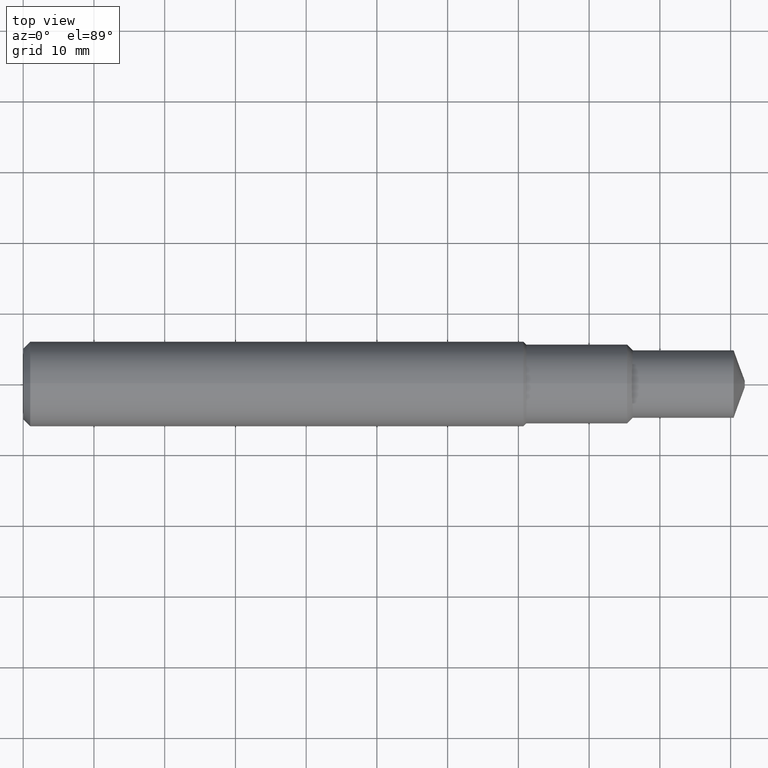
[diagram: clean part render]
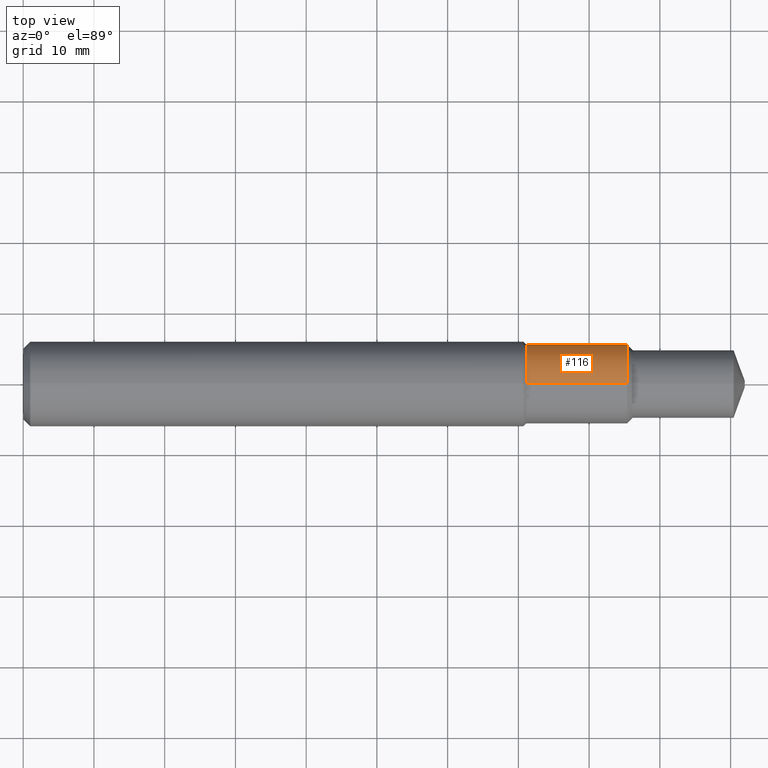
[diagram: same view with one face highlighted and labeled with its STEP entity id]
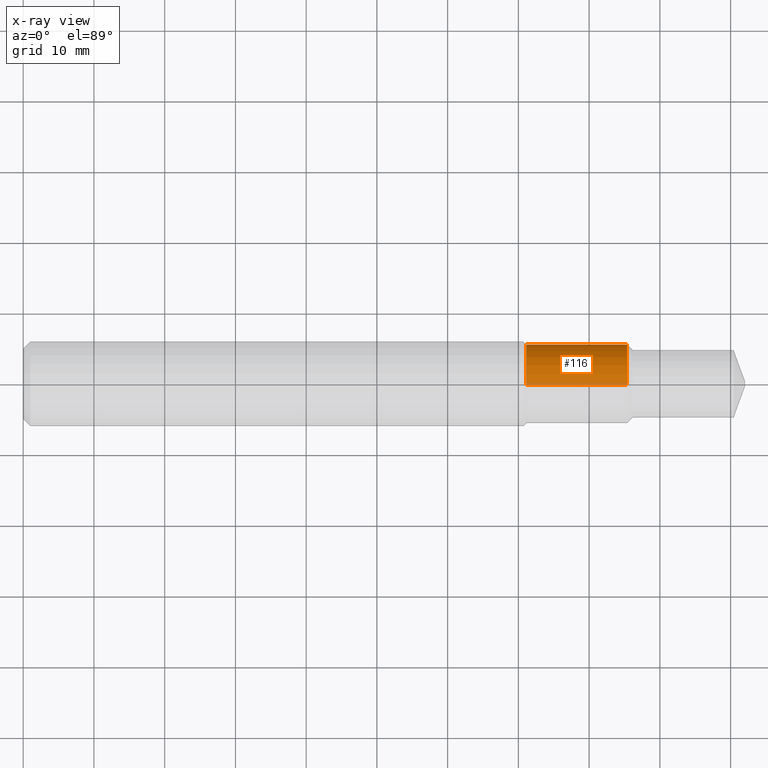
[diagram: x-ray of the same camera — body ghosted, the highlighted face saturated]
A machine part, top view. The second image highlights one B-rep face of the part: STEP entity #116.
The next image is the same camera in x-ray: the body ghosted, the highlighted face saturated — about 4% of this face is hidden behind the body in this view.
In plain terms, the highlighted cylindrical surface (partial cylindrical patch) has radius 5.588 mm, axis along (1, -0, -0).
Its self-contained STEP definition (entity closure, byte-faithful):
#9 = CARTESIAN_POINT ( 'NONE',  ( -0.03808593750000075634, 0.000000000000000000, -0.2200000000000003897 ) ) ;
#10 = AXIS2_PLACEMENT_3D ( 'NONE', #111, #257, #406 ) ;
#16 = CARTESIAN_POINT ( 'NONE',  ( 3.361261089940479785, 0.000000000000000000, 0.000000000000000000 ) ) ;
#17 = EDGE_CURVE ( 'NONE', #88, #38, #153, .T. ) ;
#18 = VERTEX_POINT ( 'NONE', #157 ) ;
#31 = ORIENTED_EDGE ( 'NONE', *, *, #292, .F. ) ;
#38 = VERTEX_POINT ( 'NONE', #306 ) ;
#45 = DIRECTION ( 'NONE',  ( 1.000000000000000000, -0.000000000000000000, -0.000000000000000000 ) ) ;
#46 = CARTESIAN_POINT ( 'NONE',  ( 2.800261089940479842, 0.000000000000000000, -0.2200000000000003897 ) ) ;
#48 = VECTOR ( 'NONE', #195, 39.37007874015748143 ) ;
#76 = DIRECTION ( 'NONE',  ( 1.000000000000000000, -0.000000000000000000, -0.000000000000000000 ) ) ;
#80 = CARTESIAN_POINT ( 'NONE',  ( 2.800261089940479842, 0.000000000000000000, 0.000000000000000000 ) ) ;
#88 = VERTEX_POINT ( 'NONE', #46 ) ;
#111 = CARTESIAN_POINT ( 'NONE',  ( -0.03808593750000075634, 0.000000000000000000, 0.000000000000000000 ) ) ;
#114 = EDGE_CURVE ( 'NONE', #18, #319, #343, .T. ) ;
#116 = ADVANCED_FACE ( 'NONE', ( #381 ), #297, .T. ) ;
#140 = CIRCLE ( 'NONE', #418, 0.2200000000000003897 ) ;
#153 = LINE ( 'NONE', #9, #48 ) ;
#157 = CARTESIAN_POINT ( 'NONE',  ( 2.800261089940479842, 2.694222958124181567E-17, 0.2200000000000003897 ) ) ;
#162 = AXIS2_PLACEMENT_3D ( 'NONE', #16, #168, #347 ) ;
#164 = ORIENTED_EDGE ( 'NONE', *, *, #165, .T. ) ;
#165 = EDGE_CURVE ( 'NONE', #88, #18, #140, .T. ) ;
#168 = DIRECTION ( 'NONE',  ( 1.000000000000000000, -0.000000000000000000, -0.000000000000000000 ) ) ;
#195 = DIRECTION ( 'NONE',  ( 1.000000000000000000, -0.000000000000000000, -0.000000000000000000 ) ) ;
#257 = DIRECTION ( 'NONE',  ( 1.000000000000000000, -0.000000000000000000, -0.000000000000000000 ) ) ;
#280 = VECTOR ( 'NONE', #45, 39.37007874015748143 ) ;
#291 = ORIENTED_EDGE ( 'NONE', *, *, #114, .T. ) ;
#292 = EDGE_CURVE ( 'NONE', #38, #319, #376, .T. ) ;
#297 = CYLINDRICAL_SURFACE ( 'NONE', #10, 0.2200000000000003897 ) ;
#303 = CARTESIAN_POINT ( 'NONE',  ( -0.03808593750000075634, 2.694222958124181567E-17, 0.2200000000000003897 ) ) ;
#306 = CARTESIAN_POINT ( 'NONE',  ( 3.361261089940479785, 2.694222958124182492E-17, -0.2200000000000004174 ) ) ;
#319 = VERTEX_POINT ( 'NONE', #422 ) ;
#343 = LINE ( 'NONE', #303, #280 ) ;
#347 = DIRECTION ( 'NONE',  ( 0.000000000000000000, 0.000000000000000000, -1.000000000000000000 ) ) ;
#375 = DIRECTION ( 'NONE',  ( 0.000000000000000000, 0.000000000000000000, -1.000000000000000000 ) ) ;
#376 = CIRCLE ( 'NONE', #162, 0.2200000000000004174 ) ;
#381 = FACE_OUTER_BOUND ( 'NONE', #454, .T. ) ;
#406 = DIRECTION ( 'NONE',  ( 0.000000000000000000, 0.000000000000000000, -1.000000000000000000 ) ) ;
#418 = AXIS2_PLACEMENT_3D ( 'NONE', #80, #76, #375 ) ;
#422 = CARTESIAN_POINT ( 'NONE',  ( 3.361261089940479785, 0.000000000000000000, 0.2200000000000004174 ) ) ;
#435 = ORIENTED_EDGE ( 'NONE', *, *, #17, .F. ) ;
#454 = EDGE_LOOP ( 'NONE', ( #164, #291, #31, #435 ) ) ;